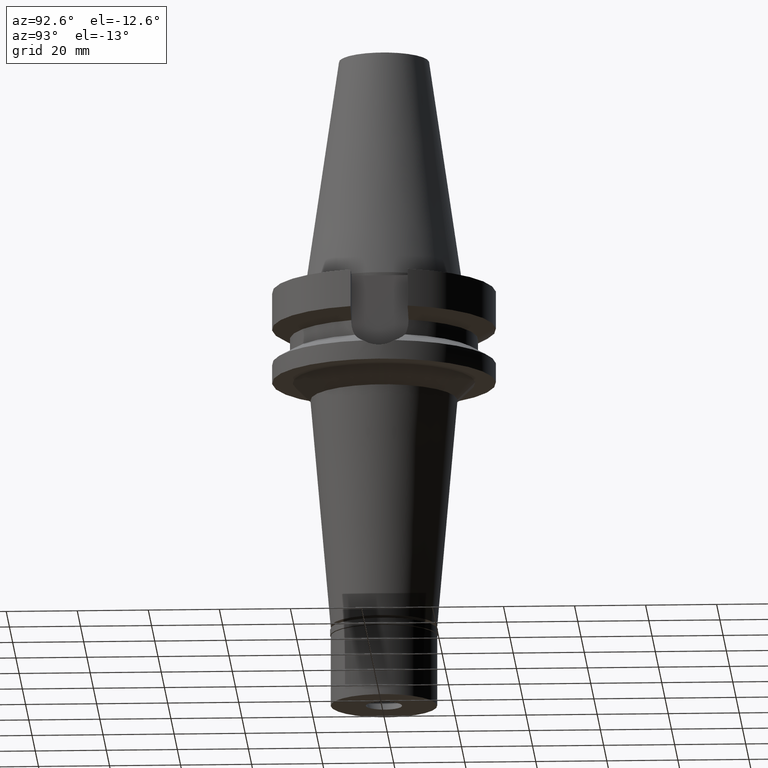
[diagram: clean part render]
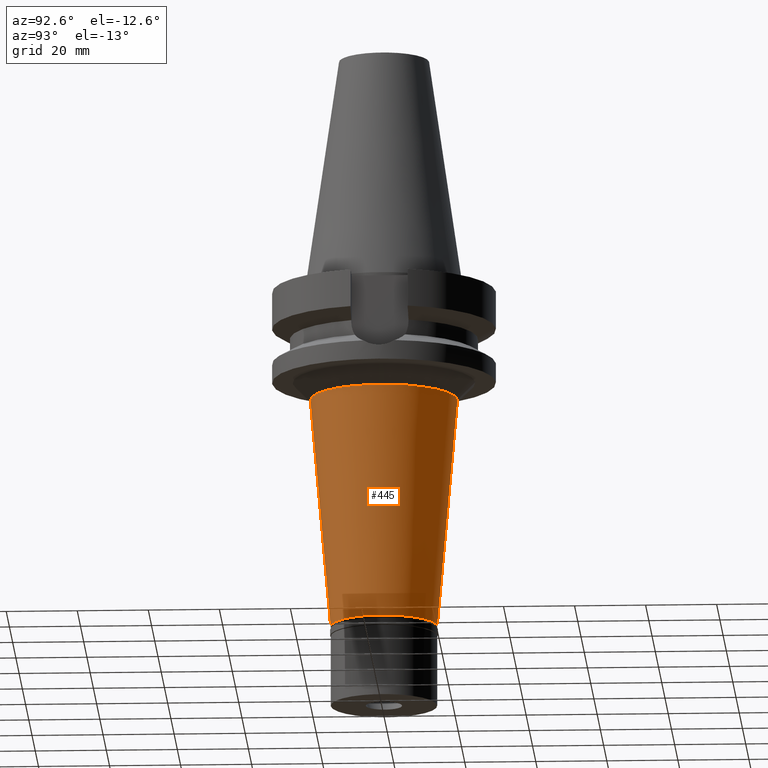
[diagram: same view with one face highlighted and labeled with its STEP entity id]
A machine part, auxiliary view. The second image highlights one B-rep face of the part: STEP entity #445.
In plain terms, the highlighted conical surface has half-angle 5 deg.
Its self-contained STEP definition (entity closure, byte-faithful):
#120 = DIRECTION ( 'NONE',  ( 0.0000000000000000000, -0.08715574274764407992, -0.9961946980917467664 ) ) ;
#213 = EDGE_CURVE ( 'NONE', #1889, #1125, #1618, .T. ) ;
#336 = DIRECTION ( 'NONE',  ( 0.0000000000000000000, 0.0000000000000000000, 1.000000000000000000 ) ) ;
#352 = LINE ( 'NONE', #3062, #636 ) ;
#376 = CARTESIAN_POINT ( 'NONE',  ( 0.0000000000000000000, -20.70426086188999903, -32.00000000000000000 ) ) ;
#445 = ADVANCED_FACE ( 'NONE', ( #2927 ), #2178, .T. ) ;
#504 = CIRCLE ( 'NONE', #2180, 20.70426086189999992 ) ;
#517 = ORIENTED_EDGE ( 'NONE', *, *, #561, .F. ) ;
#533 = ORIENTED_EDGE ( 'NONE', *, *, #213, .T. ) ;
#540 = CARTESIAN_POINT ( 'NONE',  ( 0.0000000000000000000, 15.00000000000000000, -97.19999999999998863 ) ) ;
#561 = EDGE_CURVE ( 'NONE', #1976, #1011, #504, .T. ) ;
#636 = VECTOR ( 'NONE', #120, 1000.000000000000114 ) ;
#1004 = DIRECTION ( 'NONE',  ( 0.0000000000000000000, 1.000000000000000000, 0.0000000000000000000 ) ) ;
#1011 = VERTEX_POINT ( 'NONE', #1659 ) ;
#1037 = ORIENTED_EDGE ( 'NONE', *, *, #2697, .T. ) ;
#1125 = VERTEX_POINT ( 'NONE', #540 ) ;
#1162 = CARTESIAN_POINT ( 'NONE',  ( 0.0000000000000000000, -15.00000000000000000, -97.19999999999998863 ) ) ;
#1310 = DIRECTION ( 'NONE',  ( 0.0000000000000000000, -1.000000000000000000, 0.0000000000000000000 ) ) ;
#1332 = DIRECTION ( 'NONE',  ( 0.0000000000000000000, 0.08715574274764407992, -0.9961946980917467664 ) ) ;
#1357 = EDGE_LOOP ( 'NONE', ( #517, #1037, #533, #2521 ) ) ;
#1359 = EDGE_CURVE ( 'NONE', #1011, #1125, #352, .T. ) ;
#1365 = AXIS2_PLACEMENT_3D ( 'NONE', #1460, #1477, #1004 ) ;
#1430 = DIRECTION ( 'NONE',  ( 0.0000000000000000000, 0.0000000000000000000, 1.000000000000000000 ) ) ;
#1460 = CARTESIAN_POINT ( 'NONE',  ( 0.0000000000000000000, 0.0000000000000000000, -64.60000000000000853 ) ) ;
#1477 = DIRECTION ( 'NONE',  ( 0.0000000000000000000, 0.0000000000000000000, 1.000000000000000000 ) ) ;
#1552 = CARTESIAN_POINT ( 'NONE',  ( 0.0000000000000000000, 0.0000000000000000000, -97.19999999999998863 ) ) ;
#1569 = AXIS2_PLACEMENT_3D ( 'NONE', #1552, #336, #1310 ) ;
#1618 = CIRCLE ( 'NONE', #1569, 15.00000000000000000 ) ;
#1659 = CARTESIAN_POINT ( 'NONE',  ( 0.0000000000000000000, 20.70426086188999903, -32.00000000000000000 ) ) ;
#1889 = VERTEX_POINT ( 'NONE', #1162 ) ;
#1976 = VERTEX_POINT ( 'NONE', #2135 ) ;
#2135 = CARTESIAN_POINT ( 'NONE',  ( 0.0000000000000000000, -20.70426086188999903, -32.00000000000000000 ) ) ;
#2178 = CONICAL_SURFACE ( 'NONE', #1365, 17.85213043095000174, 0.08726646259969973729 ) ;
#2180 = AXIS2_PLACEMENT_3D ( 'NONE', #2635, #1430, #2444 ) ;
#2444 = DIRECTION ( 'NONE',  ( 0.0000000000000000000, -1.000000000000000000, 0.0000000000000000000 ) ) ;
#2521 = ORIENTED_EDGE ( 'NONE', *, *, #1359, .F. ) ;
#2553 = VECTOR ( 'NONE', #1332, 1000.000000000000114 ) ;
#2635 = CARTESIAN_POINT ( 'NONE',  ( 0.0000000000000000000, 0.0000000000000000000, -32.00000000000000000 ) ) ;
#2697 = EDGE_CURVE ( 'NONE', #1976, #1889, #2790, .T. ) ;
#2790 = LINE ( 'NONE', #376, #2553 ) ;
#2927 = FACE_OUTER_BOUND ( 'NONE', #1357, .T. ) ;
#3062 = CARTESIAN_POINT ( 'NONE',  ( 0.0000000000000000000, 20.70426086188999903, -32.00000000000000000 ) ) ;